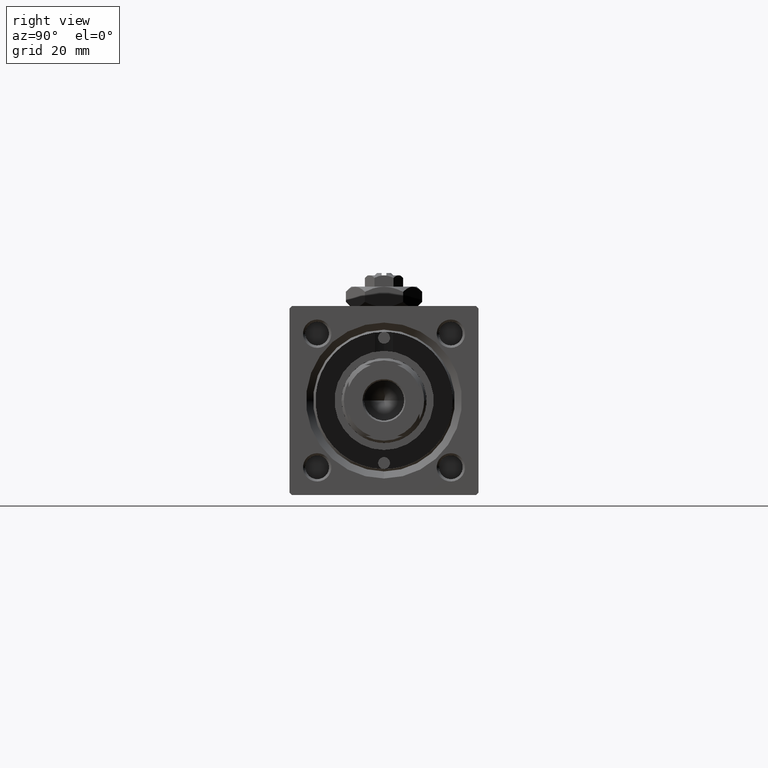
[diagram: clean part render]
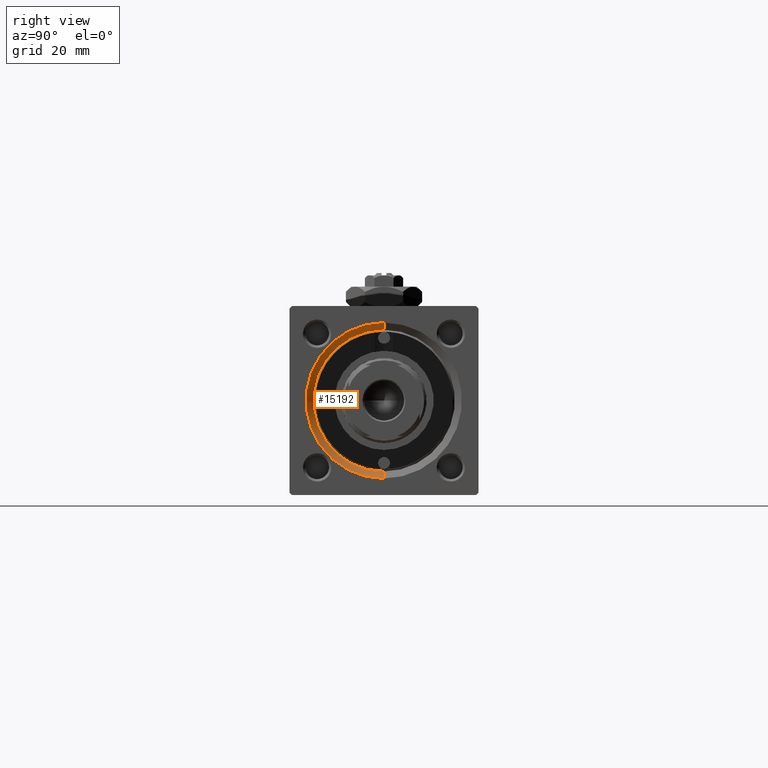
[diagram: same view with one face highlighted and labeled with its STEP entity id]
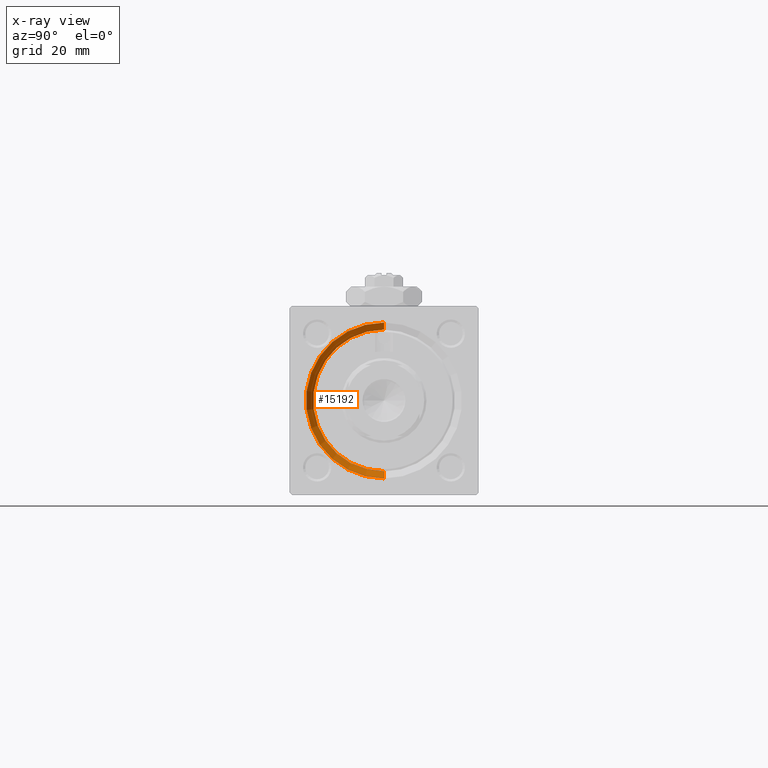
[diagram: x-ray of the same camera — body ghosted, the highlighted face saturated]
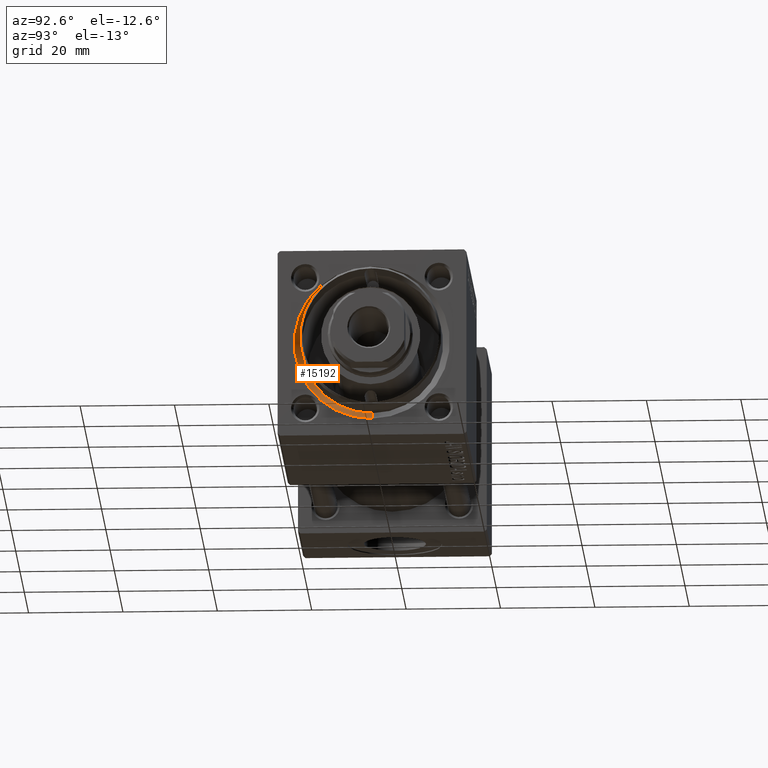
[diagram: same view with one face highlighted and labeled with its STEP entity id]
A machine part, right view. The second image highlights one B-rep face of the part: STEP entity #15192.
The next image is the same camera in x-ray: the body ghosted, the highlighted face saturated — about 0% of this face is hidden behind the body in this view.
A second angle (auxiliary view) of the same face is appended — the face is thin or edge-on in the first view.
In plain terms, the highlighted conical surface has half-angle 45 deg.
Its self-contained STEP definition (entity closure, byte-faithful):
#1738 = ORIENTED_EDGE ( 'NONE', *, *, #32430, .F. ) ;
#2653 = EDGE_LOOP ( 'NONE', ( #3432, #32330, #1738, #10450 ) ) ;
#3432 = ORIENTED_EDGE ( 'NONE', *, *, #44722, .F. ) ;
#9885 = VERTEX_POINT ( 'NONE', #26211 ) ;
#10180 = FACE_OUTER_BOUND ( 'NONE', #2653, .T. ) ;
#10450 = ORIENTED_EDGE ( 'NONE', *, *, #41528, .F. ) ;
#10773 = DIRECTION ( 'NONE',  ( 1.000000000000000000, 0.000000000000000000, 0.000000000000000000 ) ) ;
#12060 = AXIS2_PLACEMENT_3D ( 'NONE', #46728, #10773, #39361 ) ;
#12520 = DIRECTION ( 'NONE',  ( 0.7071067811865474617, 0.000000000000000000, -0.7071067811865474617 ) ) ;
#15192 = ADVANCED_FACE ( 'NONE', ( #10180 ), #47190, .F. ) ;
#15323 = CARTESIAN_POINT ( 'NONE',  ( 119.0000000000000142, 0.000000000000000000, 0.000000000000000000 ) ) ;
#17100 = CARTESIAN_POINT ( 'NONE',  ( 119.0000000000000142, 2.020667218593134678E-15, 16.50000000000001421 ) ) ;
#17956 = CIRCLE ( 'NONE', #12060, 15.00000000000000000 ) ;
#18118 = CARTESIAN_POINT ( 'NONE',  ( 117.5000000000000000, 0.000000000000000000, -15.00000000000000000 ) ) ;
#18854 = DIRECTION ( 'NONE',  ( 1.000000000000000000, 0.000000000000000000, 0.000000000000000000 ) ) ;
#25547 = LINE ( 'NONE', #33678, #34026 ) ;
#26211 = CARTESIAN_POINT ( 'NONE',  ( 117.5000000000000000, 1.836970198721029589E-15, 15.00000000000000000 ) ) ;
#26214 = DIRECTION ( 'NONE',  ( 0.000000000000000000, 0.000000000000000000, -1.000000000000000000 ) ) ;
#26731 = CARTESIAN_POINT ( 'NONE',  ( 117.5000000000000000, 0.000000000000000000, 0.000000000000000000 ) ) ;
#27414 = DIRECTION ( 'NONE',  ( 0.000000000000000000, 0.000000000000000000, 1.000000000000000000 ) ) ;
#32330 = ORIENTED_EDGE ( 'NONE', *, *, #48908, .T. ) ;
#32430 = EDGE_CURVE ( 'NONE', #39055, #36507, #41960, .T. ) ;
#33678 = CARTESIAN_POINT ( 'NONE',  ( 117.5000000000000000, 1.836970198721029589E-15, 15.00000000000000000 ) ) ;
#33760 = VECTOR ( 'NONE', #12520, 1000.000000000000114 ) ;
#34026 = VECTOR ( 'NONE', #37878, 1000.000000000000114 ) ;
#34350 = CARTESIAN_POINT ( 'NONE',  ( 119.0000000000000142, 0.000000000000000000, -16.50000000000001421 ) ) ;
#35535 = DIRECTION ( 'NONE',  ( -1.000000000000000000, -0.000000000000000000, -0.000000000000000000 ) ) ;
#36157 = LINE ( 'NONE', #48476, #33760 ) ;
#36507 = VERTEX_POINT ( 'NONE', #17100 ) ;
#37878 = DIRECTION ( 'NONE',  ( 0.7071067811865474617, 8.659560562354932858E-17, 0.7071067811865474617 ) ) ;
#38616 = AXIS2_PLACEMENT_3D ( 'NONE', #15323, #35535, #27414 ) ;
#39055 = VERTEX_POINT ( 'NONE', #34350 ) ;
#39361 = DIRECTION ( 'NONE',  ( 0.000000000000000000, 0.000000000000000000, 1.000000000000000000 ) ) ;
#41528 = EDGE_CURVE ( 'NONE', #47398, #39055, #36157, .T. ) ;
#41960 = CIRCLE ( 'NONE', #38616, 16.50000000000001421 ) ;
#44671 = AXIS2_PLACEMENT_3D ( 'NONE', #26731, #18854, #26214 ) ;
#44722 = EDGE_CURVE ( 'NONE', #9885, #47398, #17956, .T. ) ;
#46728 = CARTESIAN_POINT ( 'NONE',  ( 117.5000000000000000, 0.000000000000000000, 0.000000000000000000 ) ) ;
#47190 = CONICAL_SURFACE ( 'NONE', #44671, 15.00000000000000000, 0.7853981633974482790 ) ;
#47398 = VERTEX_POINT ( 'NONE', #18118 ) ;
#48476 = CARTESIAN_POINT ( 'NONE',  ( 117.5000000000000000, 0.000000000000000000, -15.00000000000000000 ) ) ;
#48908 = EDGE_CURVE ( 'NONE', #9885, #36507, #25547, .T. ) ;